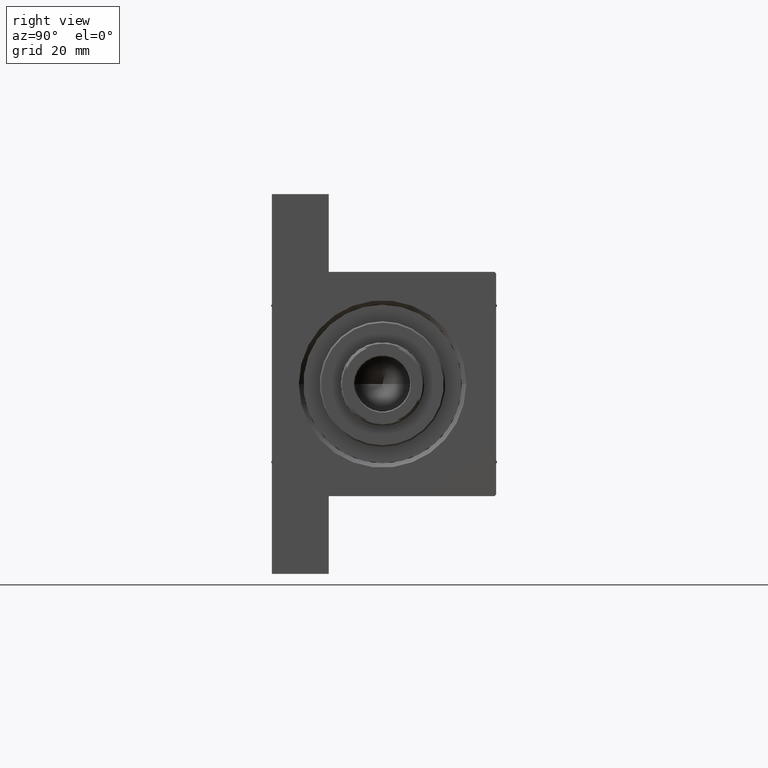
[diagram: clean part render]
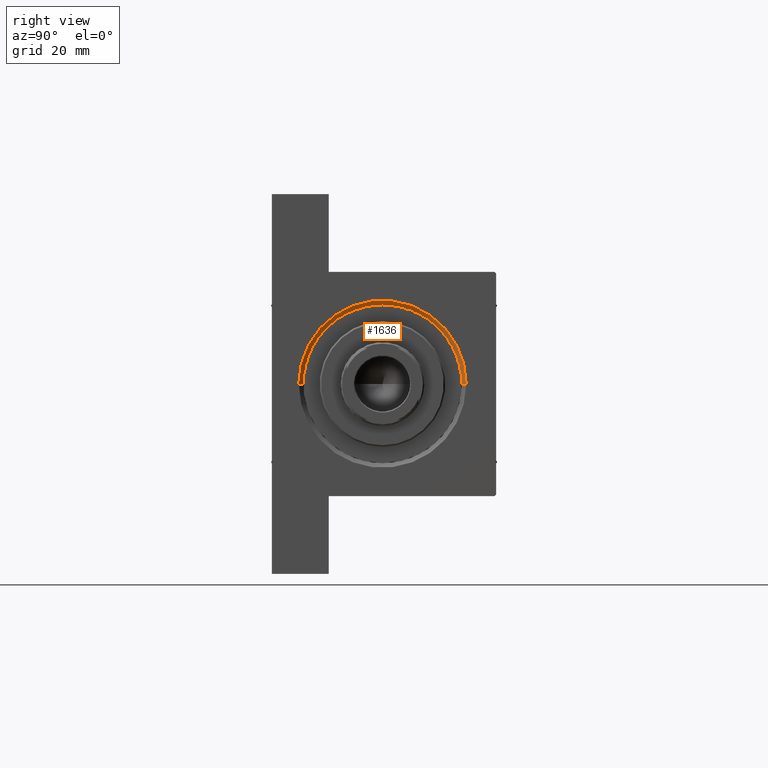
[diagram: same view with one face highlighted and labeled with its STEP entity id]
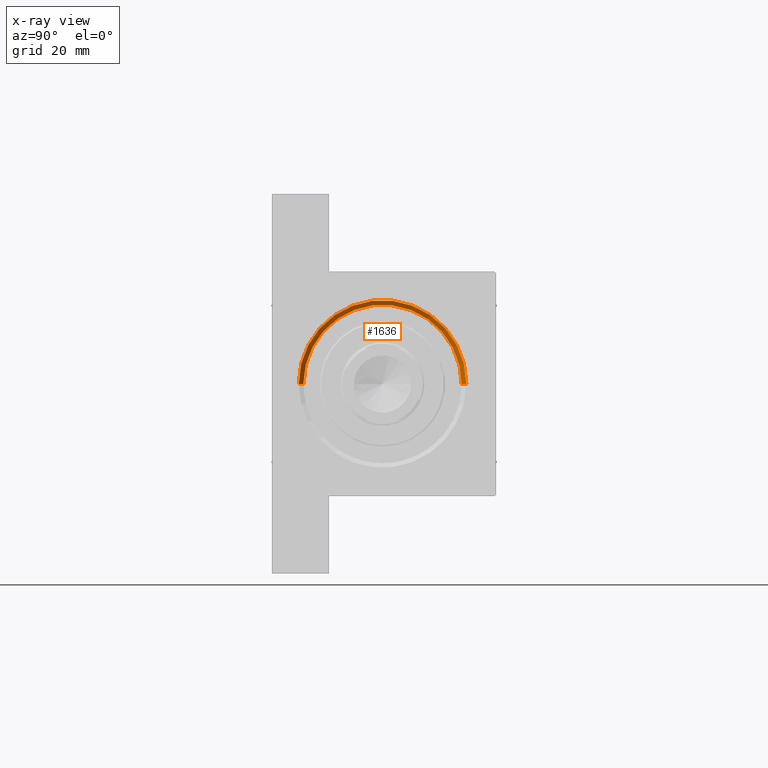
[diagram: x-ray of the same camera — body ghosted, the highlighted face saturated]
A machine part, right view. The second image highlights one B-rep face of the part: STEP entity #1636.
The next image is the same camera in x-ray: the body ghosted, the highlighted face saturated — about 0% of this face is hidden behind the body in this view.
In plain terms, the highlighted conical surface has half-angle 45 deg.
Its self-contained STEP definition (entity closure, byte-faithful):
#396 = CARTESIAN_POINT ( 'NONE',  ( 154.0000000000000000, 0.000000000000000000, -28.49999999999999645 ) ) ;
#421 = CARTESIAN_POINT ( 'NONE',  ( 152.5000000000000568, 0.000000000000000000, -0.5000000000000004441 ) ) ;
#471 = AXIS2_PLACEMENT_3D ( 'NONE', #421, #3559, #21842 ) ;
#1636 = ADVANCED_FACE ( 'NONE', ( #44211 ), #17373, .F. ) ;
#2371 = CARTESIAN_POINT ( 'NONE',  ( 152.5000000000000568, 0.000000000000000000, -27.00000000000000355 ) ) ;
#3559 = DIRECTION ( 'NONE',  ( 1.000000000000000000, 0.000000000000000000, 0.000000000000000000 ) ) ;
#5417 = CARTESIAN_POINT ( 'NONE',  ( 152.5000000000000568, 3.245314017740486554E-15, 26.00000000000000355 ) ) ;
#5577 = DIRECTION ( 'NONE',  ( 1.000000000000000000, 0.000000000000000000, 0.000000000000000000 ) ) ;
#12234 = VERTEX_POINT ( 'NONE', #5417 ) ;
#15300 = ORIENTED_EDGE ( 'NONE', *, *, #45459, .F. ) ;
#15584 = ORIENTED_EDGE ( 'NONE', *, *, #40275, .F. ) ;
#16028 = CARTESIAN_POINT ( 'NONE',  ( 152.5000000000000568, 0.000000000000000000, -27.00000000000000355 ) ) ;
#16378 = CIRCLE ( 'NONE', #20221, 26.50000000000000355 ) ;
#16892 = CARTESIAN_POINT ( 'NONE',  ( 152.5000000000000568, 0.000000000000000000, -0.5000000000000004441 ) ) ;
#17373 = CONICAL_SURFACE ( 'NONE', #471, 26.50000000000000355, 0.7853981633974644883 ) ;
#17988 = AXIS2_PLACEMENT_3D ( 'NONE', #38589, #19581, #20055 ) ;
#19581 = DIRECTION ( 'NONE',  ( -1.000000000000000000, -0.000000000000000000, 0.000000000000000000 ) ) ;
#19874 = DIRECTION ( 'NONE',  ( 0.7071067811865361374, 0.000000000000000000, -0.7071067811865588970 ) ) ;
#20055 = DIRECTION ( 'NONE',  ( 0.000000000000000000, 0.000000000000000000, 1.000000000000000000 ) ) ;
#20221 = AXIS2_PLACEMENT_3D ( 'NONE', #16892, #5577, #24579 ) ;
#21842 = DIRECTION ( 'NONE',  ( 0.000000000000000000, 0.000000000000000000, -1.000000000000000000 ) ) ;
#22583 = VECTOR ( 'NONE', #19874, 1000.000000000000114 ) ;
#23991 = EDGE_LOOP ( 'NONE', ( #15584, #29014, #15300, #42561 ) ) ;
#24579 = DIRECTION ( 'NONE',  ( 0.000000000000000000, 0.000000000000000000, 1.000000000000000000 ) ) ;
#25909 = DIRECTION ( 'NONE',  ( 0.7071067811865361374, 8.659560562355073374E-17, 0.7071067811865588970 ) ) ;
#26450 = CARTESIAN_POINT ( 'NONE',  ( 154.0000000000000000, 3.429011037612588881E-15, 27.49999999999999645 ) ) ;
#27215 = CIRCLE ( 'NONE', #17988, 27.99999999999999645 ) ;
#29014 = ORIENTED_EDGE ( 'NONE', *, *, #39225, .T. ) ;
#29297 = CARTESIAN_POINT ( 'NONE',  ( 152.5000000000000568, 3.245314017740486554E-15, 26.00000000000000355 ) ) ;
#32642 = VERTEX_POINT ( 'NONE', #2371 ) ;
#35813 = VERTEX_POINT ( 'NONE', #396 ) ;
#38589 = CARTESIAN_POINT ( 'NONE',  ( 154.0000000000000000, 0.000000000000000000, -0.5000000000000004441 ) ) ;
#39225 = EDGE_CURVE ( 'NONE', #12234, #45901, #44654, .T. ) ;
#40275 = EDGE_CURVE ( 'NONE', #12234, #32642, #16378, .T. ) ;
#41539 = LINE ( 'NONE', #16028, #22583 ) ;
#41804 = VECTOR ( 'NONE', #25909, 1000.000000000000114 ) ;
#41984 = EDGE_CURVE ( 'NONE', #32642, #35813, #41539, .T. ) ;
#42561 = ORIENTED_EDGE ( 'NONE', *, *, #41984, .F. ) ;
#44211 = FACE_OUTER_BOUND ( 'NONE', #23991, .T. ) ;
#44654 = LINE ( 'NONE', #29297, #41804 ) ;
#45459 = EDGE_CURVE ( 'NONE', #35813, #45901, #27215, .T. ) ;
#45901 = VERTEX_POINT ( 'NONE', #26450 ) ;